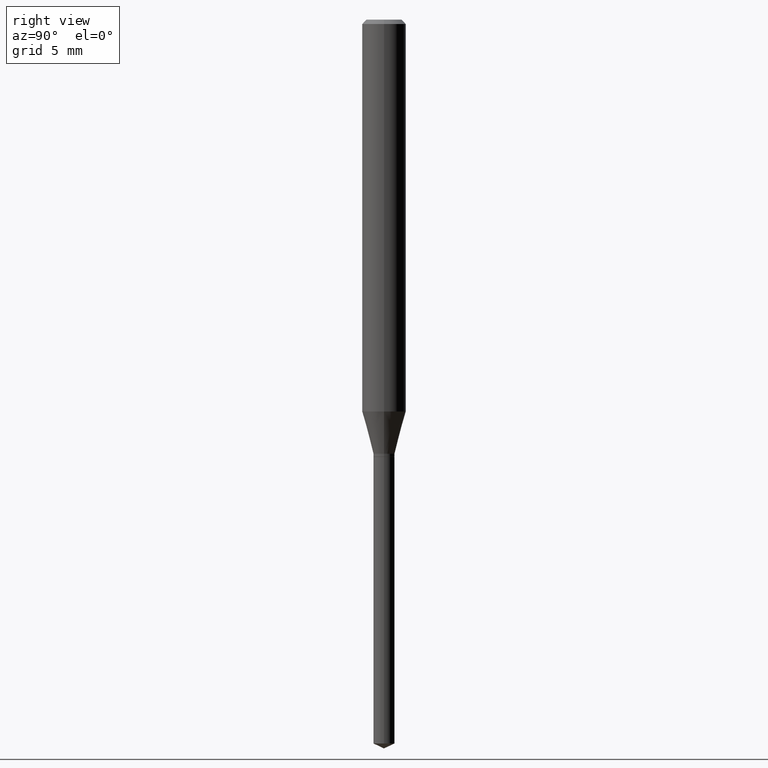
[diagram: clean part render]
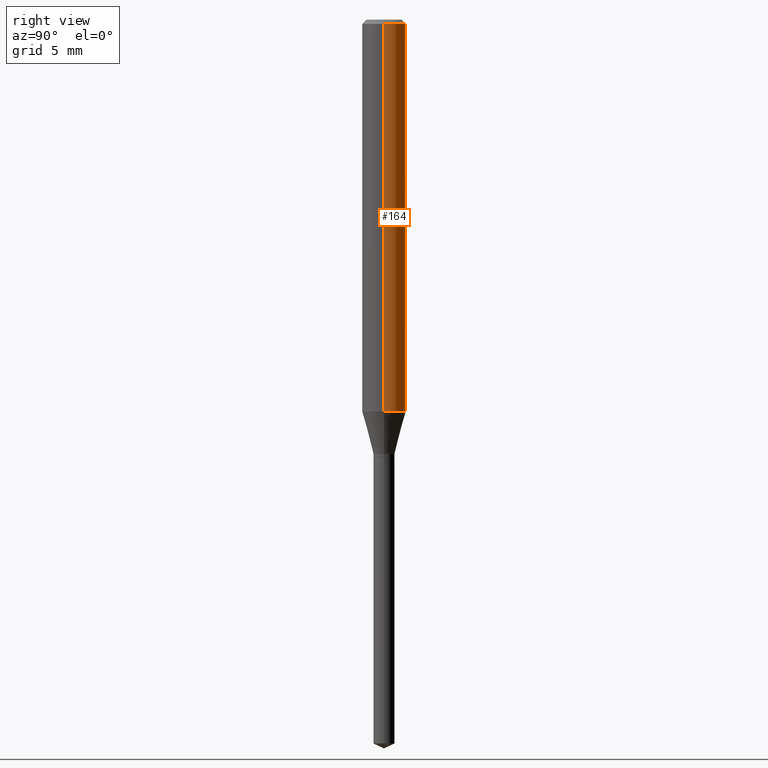
[diagram: same view with one face highlighted and labeled with its STEP entity id]
A machine part, right view. The second image highlights one B-rep face of the part: STEP entity #164.
In plain terms, the highlighted cylindrical surface (edge-blend (fillet) strip) has radius 1.4999 mm, axis along (-0, 0, 1).
Its self-contained STEP definition (entity closure, byte-faithful):
#27 = DIRECTION ( 'NONE',  ( -2.445468806185136597E-29, 3.491481338843145583E-15, 1.000000000000000000 ) ) ;
#30 = CARTESIAN_POINT ( 'NONE',  ( 2.888098660104662452E-31, -4.123439461173777798E-17, -0.01181000000000006697 ) ) ;
#31 = ORIENTED_EDGE ( 'NONE', *, *, #191, .F. ) ;
#34 = CARTESIAN_POINT ( 'NONE',  ( -0.05905000000000013710, -3.276759618944889162E-15, -1.058672450369148921 ) ) ;
#35 = VERTEX_POINT ( 'NONE', #459 ) ;
#42 = EDGE_CURVE ( 'NONE', #195, #35, #167, .T. ) ;
#54 = VECTOR ( 'NONE', #90, 39.37007874015748143 ) ;
#55 = EDGE_CURVE ( 'NONE', #195, #172, #140, .T. ) ;
#69 = DIRECTION ( 'NONE',  ( -2.445468806185136597E-29, 3.491481338843145583E-15, 1.000000000000000000 ) ) ;
#78 = CARTESIAN_POINT ( 'NONE',  ( -0.05904999999999999832, -1.449209264045143502E-15, -0.01181000000000006697 ) ) ;
#90 = DIRECTION ( 'NONE',  ( -2.445468806185136877E-29, 3.491481338843145188E-15, 1.000000000000000000 ) ) ;
#103 = DIRECTION ( 'NONE',  ( 1.000000000000000000, -6.982962677686264344E-15, 0.000000000000000000 ) ) ;
#120 = ORIENTED_EDGE ( 'NONE', *, *, #42, .F. ) ;
#133 = DIRECTION ( 'NONE',  ( -2.445468806185136877E-29, 3.491481338843145188E-15, 1.000000000000000000 ) ) ;
#137 = DIRECTION ( 'NONE',  ( 1.000000000000000000, -6.982962677686266711E-15, 0.000000000000000000 ) ) ;
#140 = CIRCLE ( 'NONE', #149, 0.05905000000000013710 ) ;
#149 = AXIS2_PLACEMENT_3D ( 'NONE', #224, #331, #103 ) ;
#164 = ADVANCED_FACE ( 'NONE', ( #406 ), #479, .T. ) ;
#167 = LINE ( 'NONE', #467, #409 ) ;
#172 = VERTEX_POINT ( 'NONE', #34 ) ;
#190 = EDGE_LOOP ( 'NONE', ( #348, #337, #31, #120 ) ) ;
#191 = EDGE_CURVE ( 'NONE', #35, #353, #241, .T. ) ;
#195 = VERTEX_POINT ( 'NONE', #215 ) ;
#215 = CARTESIAN_POINT ( 'NONE',  ( 0.05905000000000013710, -4.108679050528605153E-15, -1.058672450369148921 ) ) ;
#224 = CARTESIAN_POINT ( 'NONE',  ( 2.588950453345336253E-29, -3.696335104411230233E-15, -1.058672450369148921 ) ) ;
#230 = LINE ( 'NONE', #383, #54 ) ;
#241 = CIRCLE ( 'NONE', #320, 0.05904999999999999832 ) ;
#259 = CARTESIAN_POINT ( 'NONE',  ( 0.000000000000000000, 0.000000000000000000, 0.000000000000000000 ) ) ;
#320 = AXIS2_PLACEMENT_3D ( 'NONE', #30, #69, #137 ) ;
#331 = DIRECTION ( 'NONE',  ( -2.445468806185136597E-29, 3.491481338843145583E-15, 1.000000000000000000 ) ) ;
#337 = ORIENTED_EDGE ( 'NONE', *, *, #385, .T. ) ;
#338 = DIRECTION ( 'NONE',  ( 1.000000000000000000, -6.982962677686266711E-15, 4.876176775795936353E-29 ) ) ;
#348 = ORIENTED_EDGE ( 'NONE', *, *, #55, .T. ) ;
#353 = VERTEX_POINT ( 'NONE', #78 ) ;
#383 = CARTESIAN_POINT ( 'NONE',  ( -0.05905000000000006771, 4.195754854663396409E-16, -2.904631170795525045E-30 ) ) ;
#385 = EDGE_CURVE ( 'NONE', #172, #353, #230, .T. ) ;
#406 = FACE_OUTER_BOUND ( 'NONE', #190, .T. ) ;
#409 = VECTOR ( 'NONE', #133, 39.37007874015748143 ) ;
#431 = AXIS2_PLACEMENT_3D ( 'NONE', #259, #27, #338 ) ;
#459 = CARTESIAN_POINT ( 'NONE',  ( 0.05904999999999999832, -4.535783407291118600E-16, -0.01181000000000006697 ) ) ;
#467 = CARTESIAN_POINT ( 'NONE',  ( 0.05905000000000006771, -4.123439461173745257E-16, 2.879382386107503723E-30 ) ) ;
#479 = CYLINDRICAL_SURFACE ( 'NONE', #431, 0.05905000000000006771 ) ;